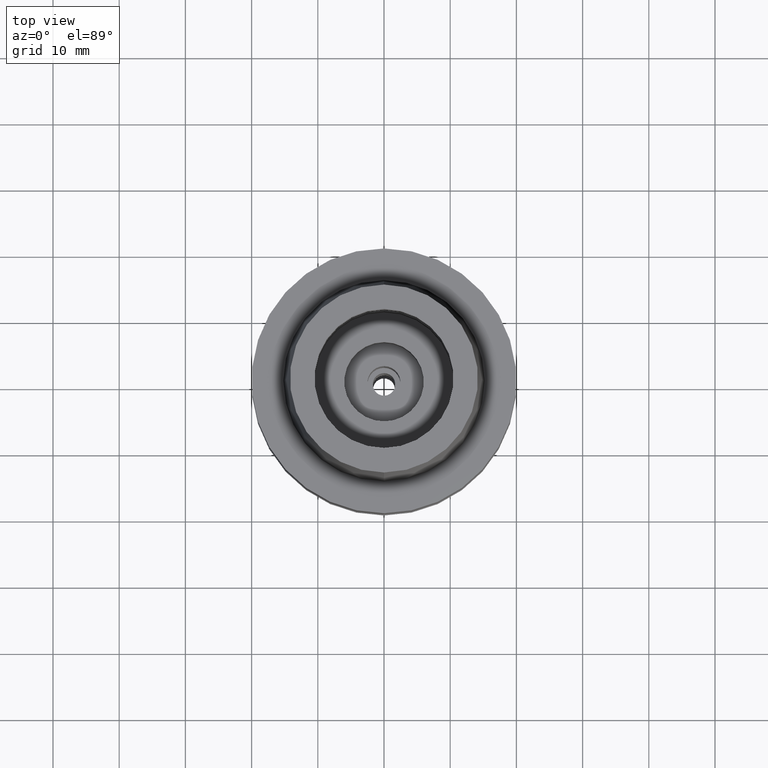
[diagram: clean part render]
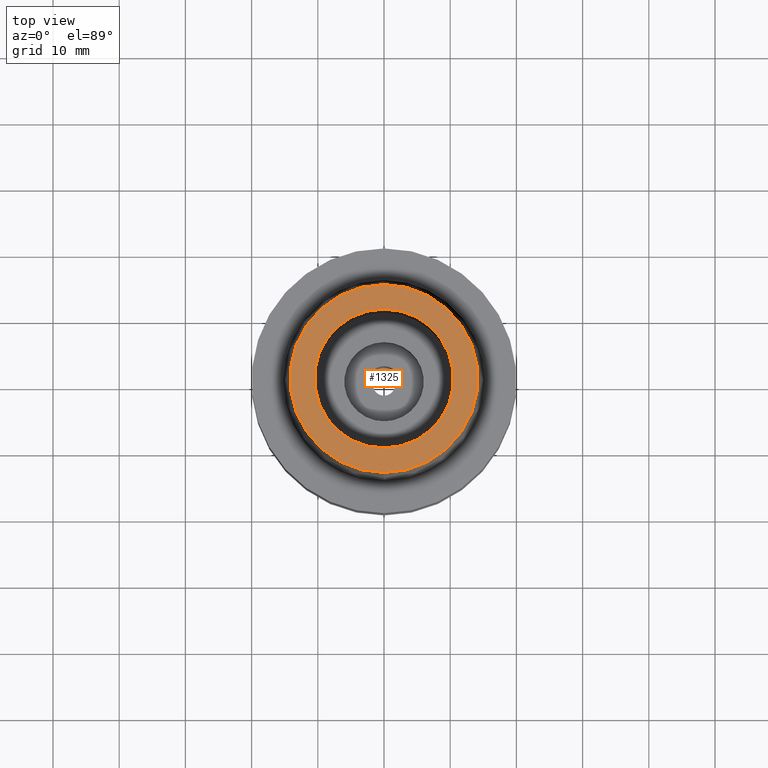
[diagram: same view with one face highlighted and labeled with its STEP entity id]
A machine part, top view. The second image highlights one B-rep face of the part: STEP entity #1325.
In plain terms, the highlighted planar face has unit normal (0, 0, 1).
Its self-contained STEP definition (entity closure, byte-faithful):
#89 = AXIS2_PLACEMENT_3D ( 'NONE', #1093, #2585, #718 ) ;
#181 = CIRCLE ( 'NONE', #89, 10.50000000000000000 ) ;
#182 = VERTEX_POINT ( 'NONE', #2110 ) ;
#247 = FACE_OUTER_BOUND ( 'NONE', #2454, .T. ) ;
#292 = DIRECTION ( 'NONE',  ( 0.0000000000000000000, 1.000000000000000000, 0.0000000000000000000 ) ) ;
#375 = DIRECTION ( 'NONE',  ( 0.0000000000000000000, 0.0000000000000000000, -1.000000000000000000 ) ) ;
#405 = AXIS2_PLACEMENT_3D ( 'NONE', #1708, #1884, #670 ) ;
#473 = CIRCLE ( 'NONE', #1787, 14.20000146305999955 ) ;
#474 = PLANE ( 'NONE',  #405 ) ;
#670 = DIRECTION ( 'NONE',  ( 1.000000000000000000, 0.0000000000000000000, 0.0000000000000000000 ) ) ;
#718 = DIRECTION ( 'NONE',  ( 0.0000000000000000000, 1.000000000000000000, 0.0000000000000000000 ) ) ;
#740 = VERTEX_POINT ( 'NONE', #1201 ) ;
#917 = DIRECTION ( 'NONE',  ( 0.0000000000000000000, 0.0000000000000000000, -1.000000000000000000 ) ) ;
#1023 = CARTESIAN_POINT ( 'NONE',  ( 0.0000000000000000000, 0.0000000000000000000, 20.00000000000000000 ) ) ;
#1078 = DIRECTION ( 'NONE',  ( 0.0000000000000000000, -1.000000000000000000, 0.0000000000000000000 ) ) ;
#1092 = VERTEX_POINT ( 'NONE', #1176 ) ;
#1093 = CARTESIAN_POINT ( 'NONE',  ( 0.0000000000000000000, 0.0000000000000000000, 20.00000000000000000 ) ) ;
#1176 = CARTESIAN_POINT ( 'NONE',  ( 0.0000000000000000000, -10.50000000000000000, 20.00000000000000000 ) ) ;
#1200 = ORIENTED_EDGE ( 'NONE', *, *, #2352, .F. ) ;
#1201 = CARTESIAN_POINT ( 'NONE',  ( 0.0000000000000000000, 14.20000146305999955, 20.00000000000000000 ) ) ;
#1277 = CIRCLE ( 'NONE', #2183, 14.20000146305999955 ) ;
#1325 = ADVANCED_FACE ( 'NONE', ( #247, #2509 ), #474, .T. ) ;
#1459 = CARTESIAN_POINT ( 'NONE',  ( 0.0000000000000000000, 0.0000000000000000000, 20.00000000000000000 ) ) ;
#1558 = CARTESIAN_POINT ( 'NONE',  ( 0.0000000000000000000, 0.0000000000000000000, 20.00000000000000000 ) ) ;
#1708 = CARTESIAN_POINT ( 'NONE',  ( 0.0000000000000000000, 0.0000000000000000000, 20.00000000000000000 ) ) ;
#1787 = AXIS2_PLACEMENT_3D ( 'NONE', #1023, #375, #2019 ) ;
#1874 = CIRCLE ( 'NONE', #1912, 10.50000000000000000 ) ;
#1884 = DIRECTION ( 'NONE',  ( 0.0000000000000000000, 0.0000000000000000000, 1.000000000000000000 ) ) ;
#1909 = ORIENTED_EDGE ( 'NONE', *, *, #1975, .F. ) ;
#1912 = AXIS2_PLACEMENT_3D ( 'NONE', #1459, #2511, #1078 ) ;
#1923 = EDGE_CURVE ( 'NONE', #740, #2062, #1277, .T. ) ;
#1975 = EDGE_CURVE ( 'NONE', #182, #1092, #181, .T. ) ;
#2019 = DIRECTION ( 'NONE',  ( 0.0000000000000000000, -1.000000000000000000, 0.0000000000000000000 ) ) ;
#2057 = CARTESIAN_POINT ( 'NONE',  ( 0.0000000000000000000, -14.20000146305999955, 20.00000000000000000 ) ) ;
#2062 = VERTEX_POINT ( 'NONE', #2057 ) ;
#2110 = CARTESIAN_POINT ( 'NONE',  ( 0.0000000000000000000, 10.50000000000000000, 20.00000000000000000 ) ) ;
#2166 = ORIENTED_EDGE ( 'NONE', *, *, #1923, .F. ) ;
#2183 = AXIS2_PLACEMENT_3D ( 'NONE', #1558, #917, #292 ) ;
#2243 = EDGE_LOOP ( 'NONE', ( #1909, #2387 ) ) ;
#2286 = EDGE_CURVE ( 'NONE', #1092, #182, #1874, .T. ) ;
#2352 = EDGE_CURVE ( 'NONE', #2062, #740, #473, .T. ) ;
#2387 = ORIENTED_EDGE ( 'NONE', *, *, #2286, .F. ) ;
#2454 = EDGE_LOOP ( 'NONE', ( #2166, #1200 ) ) ;
#2509 = FACE_BOUND ( 'NONE', #2243, .T. ) ;
#2511 = DIRECTION ( 'NONE',  ( 0.0000000000000000000, 0.0000000000000000000, 1.000000000000000000 ) ) ;
#2585 = DIRECTION ( 'NONE',  ( 0.0000000000000000000, 0.0000000000000000000, 1.000000000000000000 ) ) ;